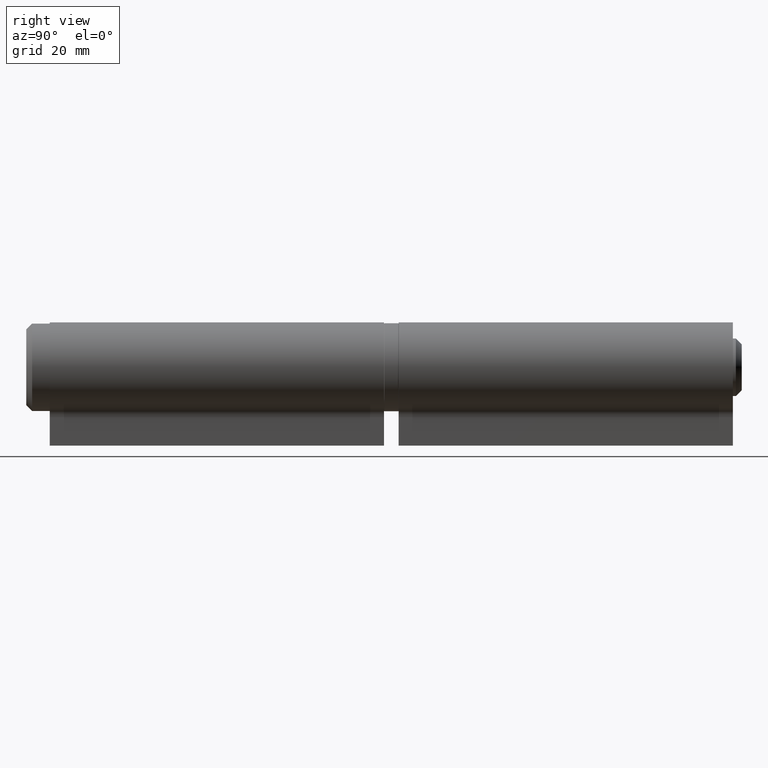
[diagram: clean part render]
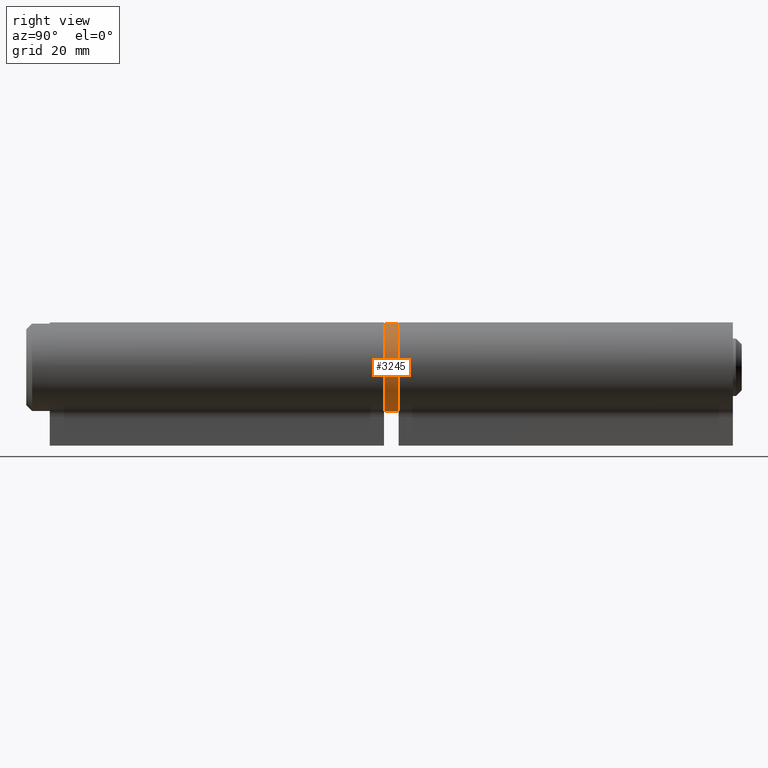
[diagram: same view with one face highlighted and labeled with its STEP entity id]
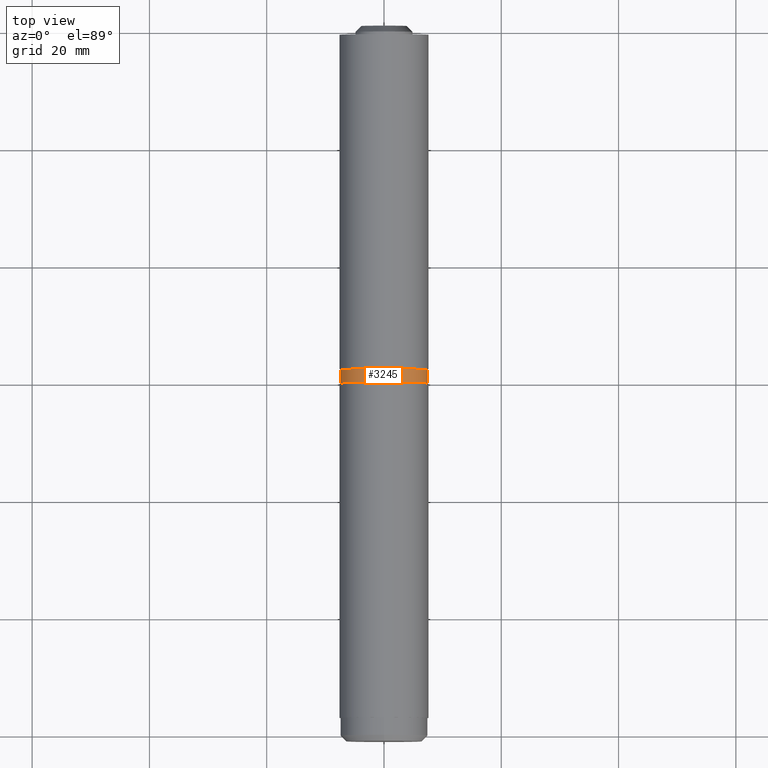
[diagram: same view with one face highlighted and labeled with its STEP entity id]
A machine part, right view. The second image highlights one B-rep face of the part: STEP entity #3245.
A second angle (top view) of the same face is appended — the face is thin or edge-on in the first view.
In plain terms, the highlighted cylindrical surface (bore or boss wall) has radius 7.5 mm, axis along (-0, -1, -0).
Its self-contained STEP definition (entity closure, byte-faithful):
#596 = EDGE_CURVE ( 'NONE', #6582, #6582, #7256, .T. ) ;
#675 = AXIS2_PLACEMENT_3D ( 'NONE', #13580, #4941, #8190 ) ;
#742 = CARTESIAN_POINT ( 'NONE',  ( 0.000000000000000000, 1.149999999999998135, 0.000000000000000000 ) ) ;
#1802 = EDGE_LOOP ( 'NONE', ( #4726 ) ) ;
#3245 = ADVANCED_FACE ( 'NONE', ( #13353, #11171 ), #3718, .T. ) ;
#3718 = CYLINDRICAL_SURFACE ( 'NONE', #675, 7.500000000000000000 ) ;
#3891 = AXIS2_PLACEMENT_3D ( 'NONE', #742, #7051, #7192 ) ;
#4726 = ORIENTED_EDGE ( 'NONE', *, *, #596, .T. ) ;
#4941 = DIRECTION ( 'NONE',  ( -0.000000000000000000, -1.000000000000000000, -0.000000000000000000 ) ) ;
#6582 = VERTEX_POINT ( 'NONE', #10748 ) ;
#7044 = DIRECTION ( 'NONE',  ( 0.000000000000000000, 0.000000000000000000, 1.000000000000000000 ) ) ;
#7051 = DIRECTION ( 'NONE',  ( -0.000000000000000000, -1.000000000000000000, -0.000000000000000000 ) ) ;
#7192 = DIRECTION ( 'NONE',  ( 0.000000000000000000, 0.000000000000000000, 1.000000000000000000 ) ) ;
#7256 = CIRCLE ( 'NONE', #3891, 7.500000000000000000 ) ;
#7622 = CIRCLE ( 'NONE', #12928, 7.500000000000000000 ) ;
#8190 = DIRECTION ( 'NONE',  ( 0.000000000000000000, 0.000000000000000000, -1.000000000000000000 ) ) ;
#8623 = VERTEX_POINT ( 'NONE', #8816 ) ;
#8816 = CARTESIAN_POINT ( 'NONE',  ( 0.000000000000000000, -1.149999999999999911, 7.500000000000000000 ) ) ;
#9789 = ORIENTED_EDGE ( 'NONE', *, *, #13354, .T. ) ;
#10401 = CARTESIAN_POINT ( 'NONE',  ( 0.000000000000000000, -1.149999999999999911, 0.000000000000000000 ) ) ;
#10748 = CARTESIAN_POINT ( 'NONE',  ( 0.000000000000000000, 1.149999999999998135, 7.500000000000000000 ) ) ;
#11171 = FACE_OUTER_BOUND ( 'NONE', #1802, .T. ) ;
#12928 = AXIS2_PLACEMENT_3D ( 'NONE', #10401, #13517, #7044 ) ;
#13353 = FACE_OUTER_BOUND ( 'NONE', #13680, .T. ) ;
#13354 = EDGE_CURVE ( 'NONE', #8623, #8623, #7622, .T. ) ;
#13517 = DIRECTION ( 'NONE',  ( 0.000000000000000000, 1.000000000000000000, 0.000000000000000000 ) ) ;
#13580 = CARTESIAN_POINT ( 'NONE',  ( 0.000000000000000000, 1.250000000000001110, 0.000000000000000000 ) ) ;
#13680 = EDGE_LOOP ( 'NONE', ( #9789 ) ) ;